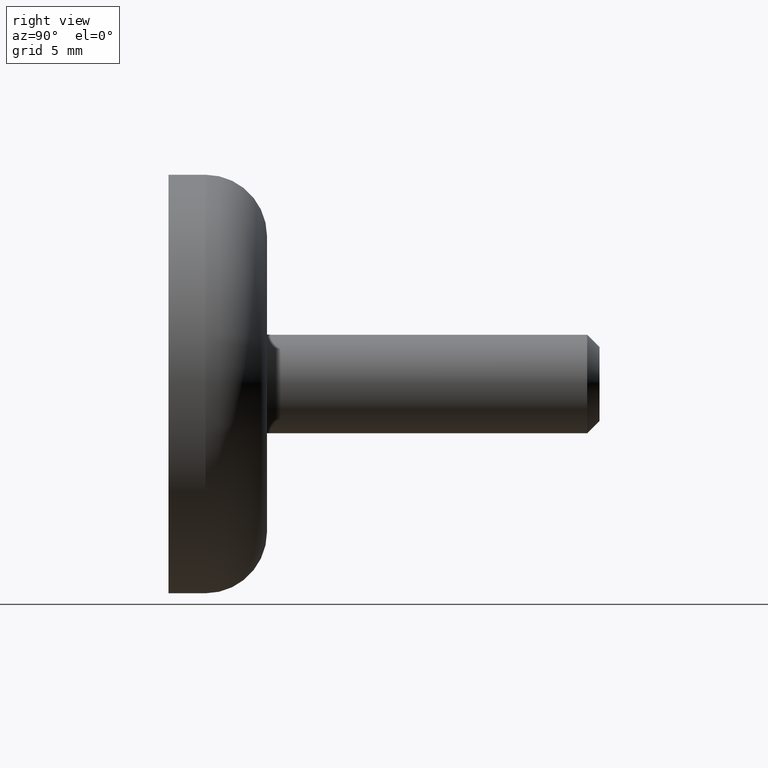
[diagram: clean part render]
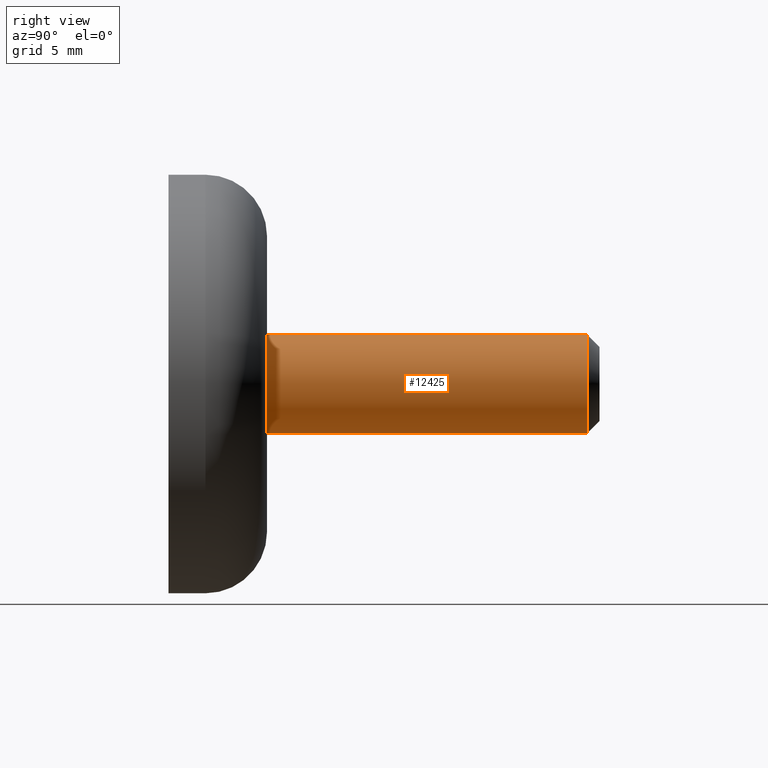
[diagram: same view with one face highlighted and labeled with its STEP entity id]
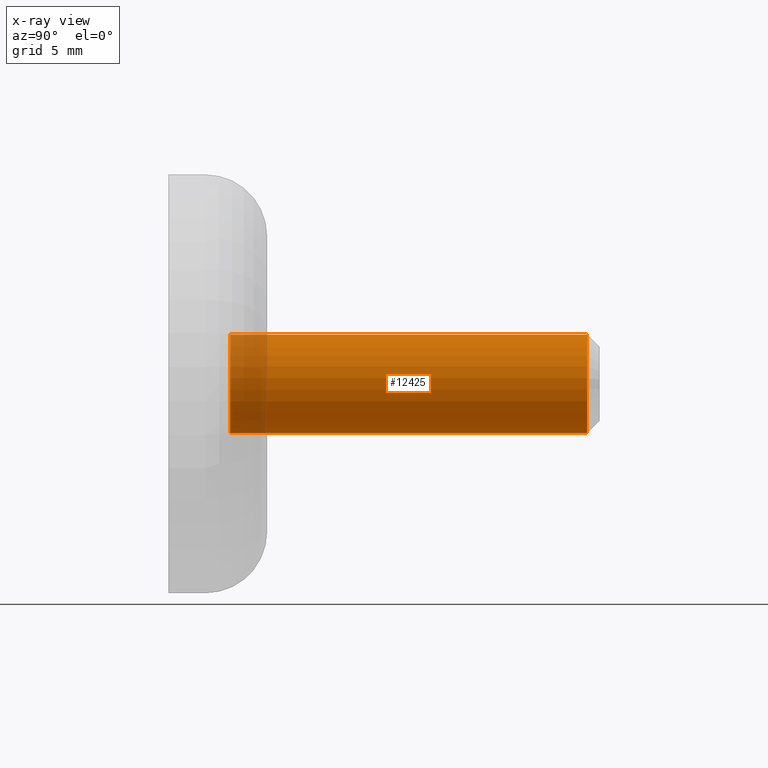
[diagram: x-ray of the same camera — body ghosted, the highlighted face saturated]
A machine part, right view. The second image highlights one B-rep face of the part: STEP entity #12425.
The next image is the same camera in x-ray: the body ghosted, the highlighted face saturated — about 10% of this face is hidden behind the body in this view.
In plain terms, the highlighted cylindrical surface (partial cylindrical patch) has radius 4 mm, axis along (-0, -1, -0).
Its self-contained STEP definition (entity closure, byte-faithful):
#725 = DIRECTION ( 'NONE',  ( -0.000000000000000000, -1.000000000000000000, -0.000000000000000000 ) ) ;
#774 = CARTESIAN_POINT ( 'NONE',  ( 4.898587196589415787E-16, 34.00000000000000000, 4.000000000000001776 ) ) ;
#1286 = CARTESIAN_POINT ( 'NONE',  ( 0.000000000000000000, 34.00000000000000000, -4.000000000000001776 ) ) ;
#1361 = DIRECTION ( 'NONE',  ( -0.000000000000000000, -1.000000000000000000, -0.000000000000000000 ) ) ;
#1972 = LINE ( 'NONE', #3329, #6450 ) ;
#2511 = AXIS2_PLACEMENT_3D ( 'NONE', #7222, #3547, #14619 ) ;
#3329 = CARTESIAN_POINT ( 'NONE',  ( 4.898587196589415787E-16, 0.000000000000000000, 4.000000000000001776 ) ) ;
#3478 = VECTOR ( 'NONE', #15097, 1000.000000000000000 ) ;
#3547 = DIRECTION ( 'NONE',  ( -0.000000000000000000, -1.000000000000000000, -0.000000000000000000 ) ) ;
#3924 = VERTEX_POINT ( 'NONE', #1286 ) ;
#4017 = ORIENTED_EDGE ( 'NONE', *, *, #8904, .T. ) ;
#4363 = CARTESIAN_POINT ( 'NONE',  ( 0.000000000000000000, 0.000000000000000000, 0.000000000000000000 ) ) ;
#4631 = ORIENTED_EDGE ( 'NONE', *, *, #13442, .F. ) ;
#5266 = VERTEX_POINT ( 'NONE', #5740 ) ;
#5403 = FACE_OUTER_BOUND ( 'NONE', #9805, .T. ) ;
#5740 = CARTESIAN_POINT ( 'NONE',  ( 4.898587196589417759E-16, 4.999999999999999112, 4.000000000000003553 ) ) ;
#5745 = VERTEX_POINT ( 'NONE', #774 ) ;
#6204 = CIRCLE ( 'NONE', #13105, 4.000000000000001776 ) ;
#6224 = EDGE_CURVE ( 'NONE', #3924, #5745, #6204, .T. ) ;
#6386 = CYLINDRICAL_SURFACE ( 'NONE', #10744, 4.000000000000001776 ) ;
#6450 = VECTOR ( 'NONE', #725, 1000.000000000000000 ) ;
#7143 = ORIENTED_EDGE ( 'NONE', *, *, #6224, .T. ) ;
#7222 = CARTESIAN_POINT ( 'NONE',  ( 0.000000000000000000, 4.999999999999999112, 0.000000000000000000 ) ) ;
#8062 = VERTEX_POINT ( 'NONE', #9282 ) ;
#8155 = DIRECTION ( 'NONE',  ( 0.000000000000000000, 0.000000000000000000, -1.000000000000000000 ) ) ;
#8475 = CIRCLE ( 'NONE', #2511, 4.000000000000003553 ) ;
#8742 = CARTESIAN_POINT ( 'NONE',  ( 0.000000000000000000, 34.00000000000000000, 0.000000000000000000 ) ) ;
#8814 = CARTESIAN_POINT ( 'NONE',  ( 0.000000000000000000, 0.000000000000000000, -4.000000000000001776 ) ) ;
#8904 = EDGE_CURVE ( 'NONE', #5745, #5266, #1972, .T. ) ;
#9282 = CARTESIAN_POINT ( 'NONE',  ( 0.000000000000000000, 4.999999999999999112, -4.000000000000003553 ) ) ;
#9805 = EDGE_LOOP ( 'NONE', ( #7143, #4017, #4631, #10025 ) ) ;
#10025 = ORIENTED_EDGE ( 'NONE', *, *, #11315, .F. ) ;
#10744 = AXIS2_PLACEMENT_3D ( 'NONE', #4363, #14320, #8155 ) ;
#11315 = EDGE_CURVE ( 'NONE', #3924, #8062, #14697, .T. ) ;
#12425 = ADVANCED_FACE ( 'NONE', ( #5403 ), #6386, .T. ) ;
#12690 = DIRECTION ( 'NONE',  ( 0.000000000000000000, 0.000000000000000000, 1.000000000000000000 ) ) ;
#13105 = AXIS2_PLACEMENT_3D ( 'NONE', #8742, #1361, #12690 ) ;
#13442 = EDGE_CURVE ( 'NONE', #8062, #5266, #8475, .T. ) ;
#14320 = DIRECTION ( 'NONE',  ( -0.000000000000000000, -1.000000000000000000, -0.000000000000000000 ) ) ;
#14619 = DIRECTION ( 'NONE',  ( 0.000000000000000000, 0.000000000000000000, -1.000000000000000000 ) ) ;
#14697 = LINE ( 'NONE', #8814, #3478 ) ;
#15097 = DIRECTION ( 'NONE',  ( -0.000000000000000000, -1.000000000000000000, -0.000000000000000000 ) ) ;